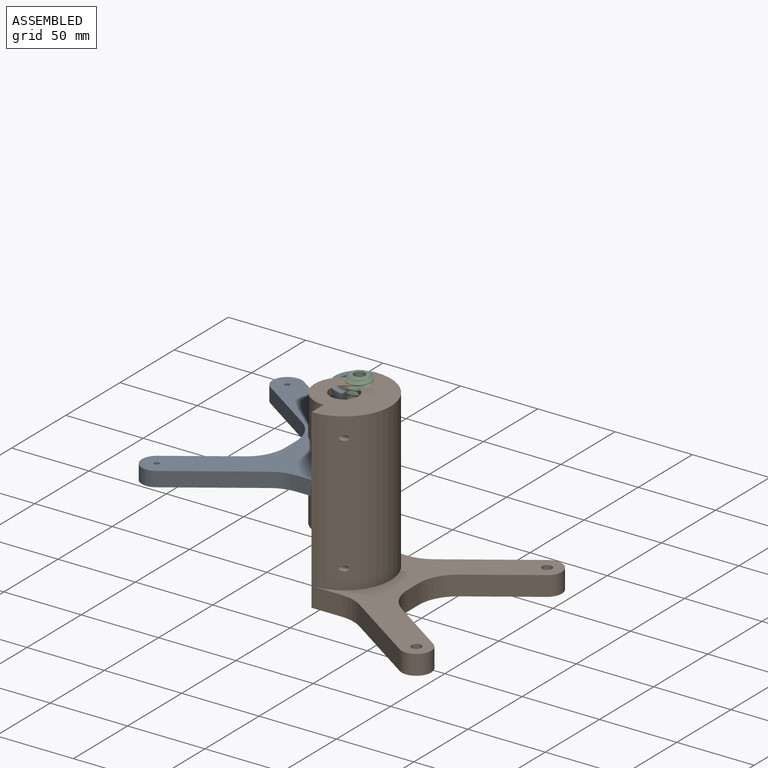
[diagram: assembled view]
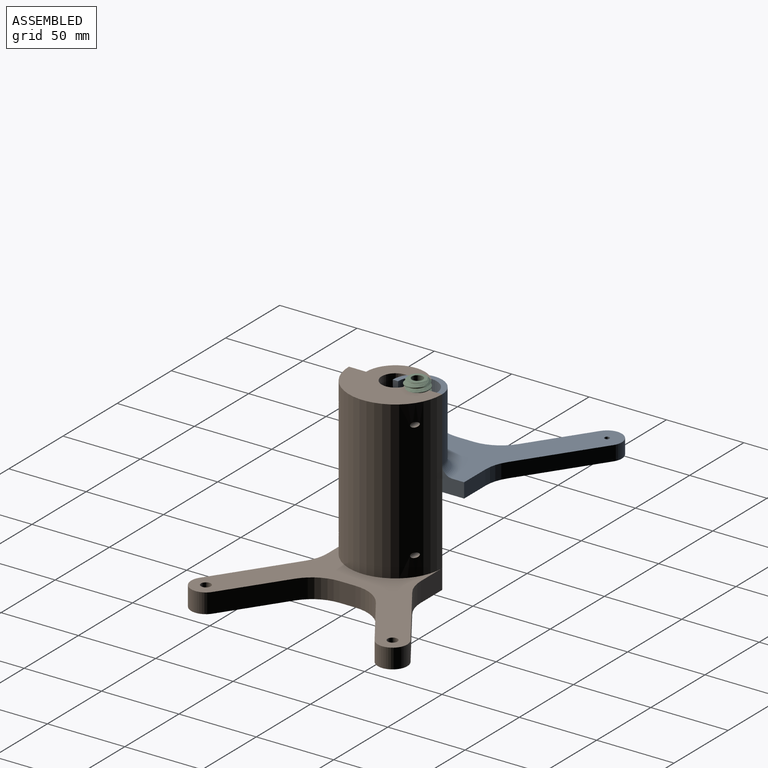
[diagram: assembled view, second angle]
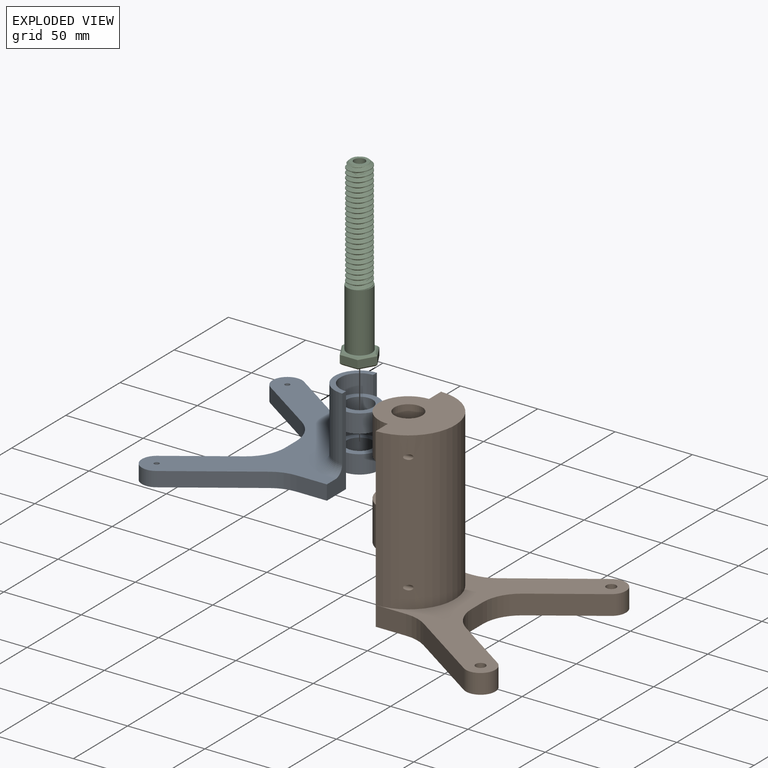
[diagram: exploded view]
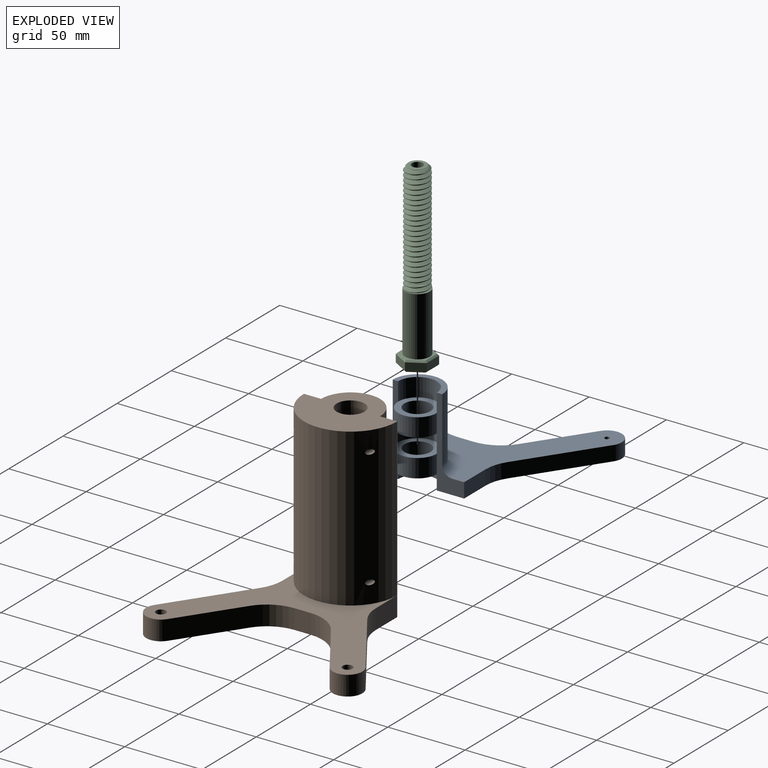
[diagram: exploded view, second angle]
ASSEMBLY  parts=3 mates=2
PART A: 33 faces, bbox 110.9x139.7x57.2 mm
  f0: cylinder r=12.5mm len=25mm, axis (0,0,1), area 467.6mm2, adj f7,f9,f19,f27
  f1: cylinder r=12.5mm len=25mm, axis (0,0,1), area 467.6mm2, adj f7,f9,f23,f26
  f2: plane 10.38x9.53mm, normal (1,0,0), area 98.9mm2, adj f16,f17,f28,f29
  f3: plane 38.66x26.23mm, normal (0.56,-0.83,0), area 445mm2, adj f4,f16,f17,f29
  f4: cylinder r=9.53mm len=17.41mm, axis (0,0,1), area 285mm2, adj f3,f5,f16,f17
  f5: plane 49.61x33.66mm, normal (-0.56,0.83,0), area 571mm2, adj f4,f16,f17,f30
  f6: plane 19.68x9.53mm, normal (0,1,0), area 187.5mm2, adj f7,f16,f17,f30
  f7: plane 57.15x17.66mm, normal (-1,0,0), area 343.6mm2, adj f0,f1,f6,f8,f16,f17,f18,f19
  f8: cylinder r=12.5mm len=25mm, axis (0,0,1), area 374mm2, adj f7,f9,f16,f22
  f9: plane 57.15x17.66mm, normal (-1,0,0), area 343.6mm2, adj f0,f1,f8,f10,f16,f17,f18,f19
  f10: plane 19.68x9.53mm, normal (0,-1,0), area 187.5mm2, adj f9,f16,f17,f31
  f11: plane 49.61x33.66mm, normal (-0.56,-0.83,0), area 571mm2, adj f12,f16,f17,f31
  f12: cylinder r=9.53mm len=17.41mm, axis (0,0,1), area 285mm2, adj f11,f14,f16,f17
  f13: cylinder r=1.59mm len=9.53mm, axis (0,0,1), area 95mm2, adj f16,f17
  f14: plane 38.66x26.23mm, normal (0.56,0.83,0), area 445mm2, adj f12,f16,f17,f28
  f15: cylinder r=1.59mm len=9.53mm, axis (0,0,1), area 95mm2, adj f16,f17
  f16: plane 139.7x98.43mm, normal (0,0,-1), area 5013.9mm2, adj f2,f3,f4,f5,f6,f7,f8,f9
  f17: plane 139.7x98.43mm, normal (0,0,1), area 4474.7mm2, adj f2,f3,f4,f5,f6,f7,f9,f10
  f18: cylinder r=16mm len=41.28mm, axis (0,0,-1), area 2074.7mm2, adj f7,f9,f19,f32
  f19: plane 32x16mm, normal (0,0,1), area 156.7mm2, adj f0,f7,f9,f18
  f20: cylinder r=8.5mm len=17mm, axis (0,0,1), area 635.9mm2, adj f22,f23
  f21: cylinder r=12.5mm len=25mm, axis (0,0,1), area 467.6mm2, adj f7,f9,f22,f23
  f22: plane 25x25mm, normal (0,0,-1), area 263.9mm2, adj f8,f20,f21
  f23: plane 25x25mm, normal (0,0,1), area 263.9mm2, adj f1,f20,f21
  f24: cylinder r=8.5mm len=17mm, axis (0,0,1), area 635.9mm2, adj f26,f27
  f25: cylinder r=12.5mm len=25mm, axis (0,0,1), area 467.6mm2, adj f7,f9,f26,f27
  f26: plane 25x25mm, normal (0,0,-1), area 263.9mm2, adj f1,f24,f25
  f27: plane 25x25mm, normal (0,0,1), area 263.9mm2, adj f0,f24,f25
  f28: cylinder r=25.4mm len=21.02mm, axis (0,0,1), area 235.8mm2, adj f2,f14,f16,f17
  f29: cylinder r=25.4mm len=21.02mm, axis (0,0,-1), area 235.8mm2, adj f2,f3,f16,f17
  f30: cylinder r=25.4mm len=14.26mm, axis (0,0,1), area 144.2mm2, adj f5,f6,f16,f17
  f31: cylinder r=25.4mm len=14.26mm, axis (0,0,1), area 144.2mm2, adj f10,f11,f16,f17
  f32: torus R=22.35mm, axis (0,0,1), area 573.7mm2, adj f7,f9,f17,f18
PART B: 36 faces, bbox 117.5x139.7x114.3 mm
  f0: cylinder r=30.16mm len=101.6mm, axis (0,0,-1), area 9573.3mm2, adj f1,f2,f16,f17,f28,f29,f30,f31
  f1: plane 114.3x15.16mm, normal (-1,0,0), area 1305.8mm2, adj f0,f3,f8,f15,f17,f18,f19,f21
  f2: plane 114.3x15.16mm, normal (-1,0,0), area 1305.8mm2, adj f0,f3,f9,f15,f17,f18,f19,f21
  f3: cylinder r=15mm len=30mm, axis (0,0,1), area 598.5mm2, adj f1,f2,f15,f19
  f4: plane 12.7x10.38mm, normal (1,0,0), area 131.9mm2, adj f15,f16,f32,f33
  f5: plane 38.66x26.23mm, normal (0.56,-0.83,0), area 593.4mm2, adj f6,f15,f16,f33
  f6: cylinder r=9.53mm len=17.41mm, axis (0,0,1), area 380mm2, adj f5,f7,f15,f16
  f7: plane 49.61x33.66mm, normal (-0.56,0.83,0), area 761.4mm2, adj f6,f15,f16,f34
  f8: plane 19.68x12.7mm, normal (0,1,0), area 250mm2, adj f1,f15,f16,f34
  f9: plane 19.68x12.7mm, normal (0,-1,0), area 250mm2, adj f2,f15,f16,f35
  f10: plane 49.61x33.66mm, normal (-0.56,-0.83,0), area 761.4mm2, adj f11,f15,f16,f35
  f11: cylinder r=9.53mm len=17.41mm, axis (0,0,1), area 380mm2, adj f10,f13,f15,f16
  f12: cylinder r=3.17mm len=12.7mm, axis (0,0,1), area 253.4mm2, adj f15,f16
  f13: plane 38.66x26.23mm, normal (0.56,0.83,0), area 593.4mm2, adj f11,f15,f16,f32
  f14: cylinder r=3.17mm len=12.7mm, axis (0,0,1), area 253.4mm2, adj f15,f16
  f15: plane 139.7x98.43mm, normal (0,0,-1), area 4858.4mm2, adj f1,f2,f3,f4,f5,f6,f7,f8
  f16: plane 139.7x98.43mm, normal (0,0,1), area 3782.8mm2, adj f0,f4,f5,f6,f7,f8,f9,f10
  f17: plane 60.33x49.21mm, normal (0,0,1), area 1744.7mm2, adj f0,f1,f2,f26,f27
  f18: cylinder r=19.05mm len=38.1mm, axis (0,0,1), area 1520.1mm2, adj f1,f2,f19,f20
  f19: plane 38.1x19.05mm, normal (0,0,1), area 216.6mm2, adj f1,f2,f3,f18
  f20: plane 38.1x38.1mm, normal (0,0,-1), area 885.6mm2, adj f18,f24,f25
  f21: cylinder r=19.05mm len=38.1mm, axis (0,0,1), area 1520.1mm2, adj f1,f2,f22,f23
  f22: plane 38.1x38.1mm, normal (0,0,1), area 885.6mm2, adj f21,f24,f25
  f23: plane 38.1x38.1mm, normal (0,0,-1), area 885.6mm2, adj f21,f26,f27
  f24: cylinder r=9mm len=25.4mm, axis (0,0,-1), area 1436.3mm2, adj f20,f22
  f25: cylinder r=19.05mm len=38.1mm, axis (0,0,-1), area 1520.1mm2, adj f1,f2,f20,f22
  f26: cylinder r=9mm len=25.4mm, axis (0,0,-1), area 1436.3mm2, adj f17,f23
  f27: cylinder r=19.05mm len=38.1mm, axis (0,0,-1), area 1520.1mm2, adj f1,f2,f17,f23
  f28: cylinder r=1.59mm len=19.49mm, axis (-1,0,0), area 172.9mm2, adj f0,f1
  f29: cylinder r=1.59mm len=19.49mm, axis (-1,0,0), area 172.9mm2, adj f0,f2
  f30: cylinder r=1.59mm len=19.49mm, axis (-1,0,0), area 172.9mm2, adj f0,f2
  f31: cylinder r=1.59mm len=19.49mm, axis (-1,0,0), area 172.9mm2, adj f0,f1
  f32: cylinder r=25.4mm len=21.02mm, axis (0,0,1), area 314.4mm2, adj f4,f13,f15,f16
  f33: cylinder r=25.4mm len=21.02mm, axis (0,0,-1), area 314.4mm2, adj f4,f5,f15,f16
  f34: cylinder r=25.4mm len=14.26mm, axis (0,0,1), area 192.3mm2, adj f7,f8,f15,f16
  f35: cylinder r=25.4mm len=14.26mm, axis (0,0,1), area 192.3mm2, adj f9,f10,f15,f16
PART C: 30 faces, bbox 118.4x20.1x23.2 mm
  f0: cylinder r=3.59mm len=85.25mm, axis (1,0,0), area 1921.7mm2, adj f24,f28
  f1: plane 9.98x5.81mm, normal (0,-0.5,0.86), area 57.7mm2, adj f2,f6,f14,f18
  f2: plane 11.55x5mm, normal (0,-1,0), area 57.7mm2, adj f1,f3,f12,f16
  f3: plane 10.02x5.74mm, normal (0,-0.5,-0.87), area 57.7mm2, adj f2,f4,f10,f15
  f4: plane 9.98x5.81mm, normal (0,0.5,-0.86), area 57.7mm2, adj f3,f5,f9,f17
  f5: plane 11.55x5mm, normal (0,1,0), area 57.7mm2, adj f4,f6,f11,f19
  f6: plane 10.02x5.74mm, normal (0,0.5,0.87), area 57.7mm2, adj f1,f5,f13,f20
  f7: plane 20.78x18.04mm, normal (1,0,0), area 233.2mm2, adj f9,f10,f11,f12,f13,f14,f29
  f8: plane 20.78x18.04mm, normal (-1,0,0), area 79.5mm2, adj f15,f16,f17,f18,f19,f20,f21
  f9: plane 9.98x6.38mm, normal (0.71,0.36,-0.61), area 15.5mm2, adj f4,f7,f10,f11
  f10: plane 10.02x6.32mm, normal (0.71,-0.35,-0.61), area 15.5mm2, adj f3,f7,f9,f12
  f11: plane 11.55x1.04mm, normal (0.71,0.71,0), area 15.5mm2, adj f5,f7,f9,f13
  f12: plane 11.55x1.04mm, normal (0.71,-0.71,0), area 15.5mm2, adj f2,f7,f10,f14
  f13: plane 10.02x6.32mm, normal (0.71,0.35,0.61), area 15.5mm2, adj f6,f7,f11,f14
  f14: plane 9.98x6.38mm, normal (0.71,-0.36,0.61), area 15.5mm2, adj f1,f7,f12,f13
  f15: plane 10.02x6.32mm, normal (-0.71,-0.35,-0.61), area 15.5mm2, adj f3,f8,f16,f17
  f16: plane 11.55x1.04mm, normal (-0.71,-0.71,0), area 15.5mm2, adj f2,f8,f15,f18
  f17: plane 9.98x6.38mm, normal (-0.71,0.36,-0.61), area 15.5mm2, adj f4,f8,f15,f19
  f18: plane 9.98x6.38mm, normal (-0.71,-0.36,0.61), area 15.5mm2, adj f1,f8,f16,f20
  f19: plane 11.55x1.04mm, normal (-0.71,0.71,0), area 15.5mm2, adj f5,f8,f17,f20
  f20: plane 10.02x6.32mm, normal (-0.71,0.35,0.61), area 15.5mm2, adj f6,f8,f18,f19
  f21: cylinder r=8mm len=38.1mm, axis (1,0,0), area 1915.1mm2, adj f8,f22
  f22: plane 16x16mm, normal (-1,0,0), area 59mm2, adj f21,f25,f26,f27
  f23: cone r=7.68mm half-angle=45deg, axis (1,0,0), area 58.2mm2, adj f24,f25,f26,f27
  f24: plane 11.42x11.42mm, normal (-1,0,0), area 60.4mm2, adj f0,f23,f25,f26
  f25: bspline ~74.81x17.74mm, area 2559.9mm2, adj f22,f23,f24,f26,f27
  f26: bspline ~73.81x17.74mm, area 2557mm2, adj f22,f23,f24,f25,f27
  f27: cylinder r=7.68mm len=69.9mm, axis (1,0,0), area 251.6mm2, adj f22,f23,f25,f26
  f28: plane 7.77x7.77mm, normal (1,0,0), area 7mm2, adj f0,f29
  f29: cylinder r=3.89mm len=31.75mm, axis (1,0,0), area 775.3mm2, adj f7,f28
PLACE A rot(axis=(0,0,1),180deg) t=(0,14.16,53.97)mm
PLACE B at identity fixed
PLACE C rot(axis=(0.71,0,-0.71),180deg) t=(0,14.16,-6.7)mm
MATE fastened B.f1 <-> A.f9  axis (-1,0,0) through (0,30.16,101.6)mm
MATE slider C.f23 <-> A.f0  axis (0,0,-1) through (0,14.16,-10.2)mm
